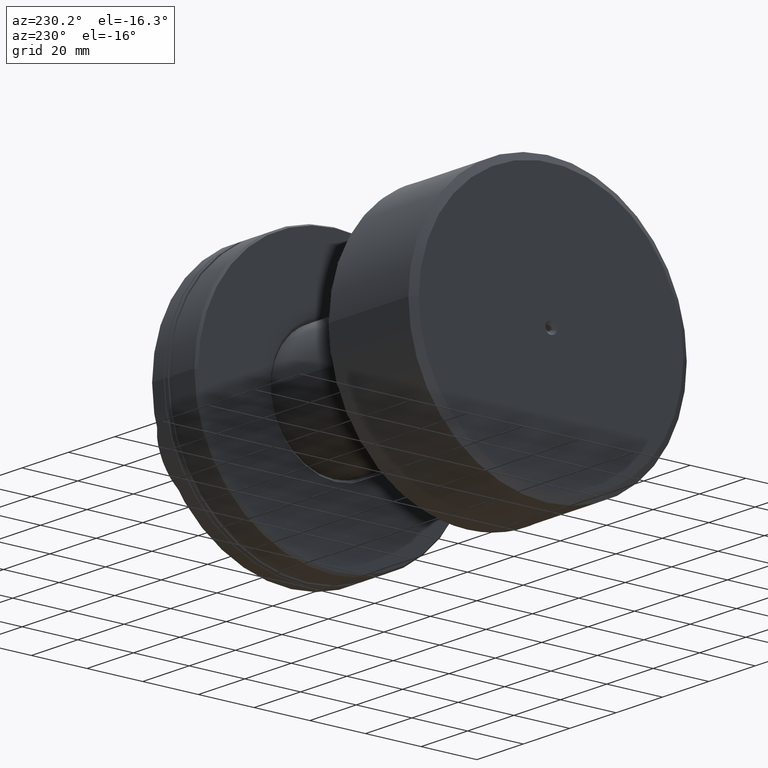
[diagram: clean part render]
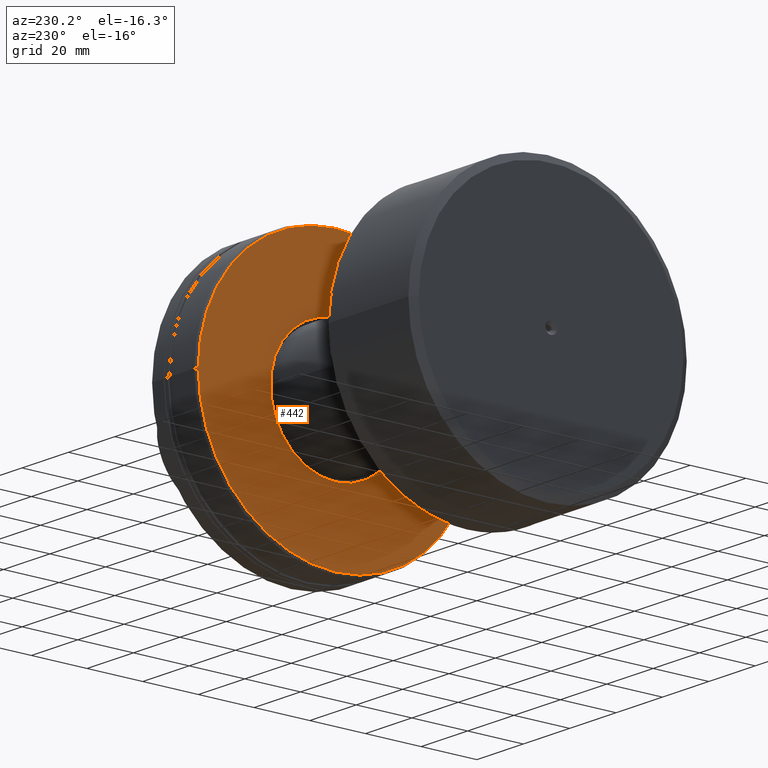
[diagram: same view with one face highlighted and labeled with its STEP entity id]
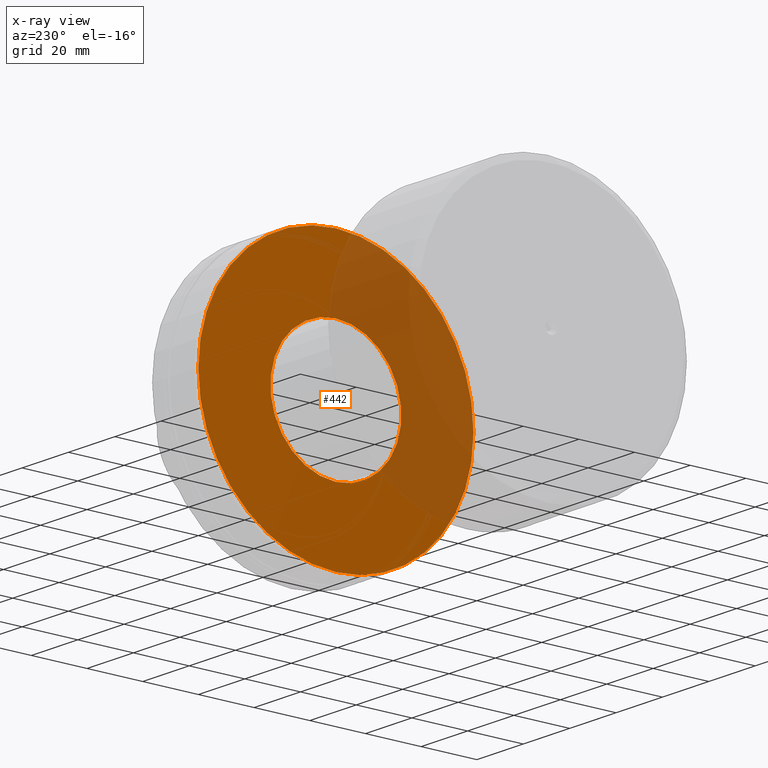
[diagram: x-ray of the same camera — body ghosted, the highlighted face saturated]
A machine part, auxiliary view. The second image highlights one B-rep face of the part: STEP entity #442.
The next image is the same camera in x-ray: the body ghosted, the highlighted face saturated — about 36% of this face is hidden behind the body in this view.
In plain terms, the highlighted planar face has unit normal (1, 0, 0).
Its self-contained STEP definition (entity closure, byte-faithful):
#8 = ORIENTED_EDGE ( 'NONE', *, *, #863, .T. ) ;
#37 = CARTESIAN_POINT ( 'NONE',  ( -45.20000000000000284, -3.708233295962651802E-15, 0.000000000000000000 ) ) ;
#48 = DIRECTION ( 'NONE',  ( -2.485414848852932351E-16, 1.000000000000000000, 0.000000000000000000 ) ) ;
#204 = AXIS2_PLACEMENT_3D ( 'NONE', #37, #1056, #2172 ) ;
#237 = AXIS2_PLACEMENT_3D ( 'NONE', #1225, #2266, #1385 ) ;
#353 = CIRCLE ( 'NONE', #204, 49.42264973081048396 ) ;
#412 = FACE_BOUND ( 'NONE', #2037, .T. ) ;
#442 = ADVANCED_FACE ( 'NONE', ( #412, #1298 ), #1481, .F. ) ;
#456 = DIRECTION ( 'NONE',  ( -2.952720810173285168E-16, 1.000000000000000000, 0.000000000000000000 ) ) ;
#586 = DIRECTION ( 'NONE',  ( 1.000000000000000000, 2.485414848852932351E-16, -0.000000000000000000 ) ) ;
#592 = CARTESIAN_POINT ( 'NONE',  ( -45.19999999999998863, -49.42264973081049106, 6.087881487779275655E-15 ) ) ;
#675 = DIRECTION ( 'NONE',  ( -2.952720810173285168E-16, 1.000000000000000000, 0.000000000000000000 ) ) ;
#735 = VERTEX_POINT ( 'NONE', #2068 ) ;
#748 = EDGE_CURVE ( 'NONE', #1252, #1758, #1354, .T. ) ;
#797 = AXIS2_PLACEMENT_3D ( 'NONE', #1324, #586, #48 ) ;
#854 = DIRECTION ( 'NONE',  ( 1.000000000000000000, 2.485414848852932351E-16, -0.000000000000000000 ) ) ;
#863 = EDGE_CURVE ( 'NONE', #735, #1149, #1803, .T. ) ;
#885 = CARTESIAN_POINT ( 'NONE',  ( -45.20000000000000284, 0.000000000000000000, 0.000000000000000000 ) ) ;
#985 = ORIENTED_EDGE ( 'NONE', *, *, #748, .F. ) ;
#1056 = DIRECTION ( 'NONE',  ( 1.000000000000000000, 2.485414848852932351E-16, -0.000000000000000000 ) ) ;
#1149 = VERTEX_POINT ( 'NONE', #1270 ) ;
#1225 = CARTESIAN_POINT ( 'NONE',  ( -45.20000000000000284, -3.708233295962651802E-15, 0.000000000000000000 ) ) ;
#1228 = CARTESIAN_POINT ( 'NONE',  ( -45.20000000000000284, 0.000000000000000000, 0.000000000000000000 ) ) ;
#1241 = EDGE_CURVE ( 'NONE', #1758, #1252, #353, .T. ) ;
#1252 = VERTEX_POINT ( 'NONE', #592 ) ;
#1270 = CARTESIAN_POINT ( 'NONE',  ( -45.20000000000000284, 2.877919977996283081E-15, -23.50000000000002132 ) ) ;
#1298 = FACE_OUTER_BOUND ( 'NONE', #1912, .T. ) ;
#1324 = CARTESIAN_POINT ( 'NONE',  ( -45.20000000000000284, -3.708233295962652591E-15, 0.000000000000000000 ) ) ;
#1354 = CIRCLE ( 'NONE', #237, 49.42264973081048396 ) ;
#1385 = DIRECTION ( 'NONE',  ( -2.807981337180902194E-16, 1.000000000000000000, 0.000000000000000000 ) ) ;
#1427 = ORIENTED_EDGE ( 'NONE', *, *, #1241, .F. ) ;
#1481 = PLANE ( 'NONE',  #797 ) ;
#1501 = EDGE_CURVE ( 'NONE', #1149, #735, #2190, .T. ) ;
#1701 = CARTESIAN_POINT ( 'NONE',  ( -45.20000000000001705, 49.42264973081047685, 0.000000000000000000 ) ) ;
#1740 = AXIS2_PLACEMENT_3D ( 'NONE', #1228, #2061, #456 ) ;
#1758 = VERTEX_POINT ( 'NONE', #1701 ) ;
#1803 = CIRCLE ( 'NONE', #2145, 23.50000000000002842 ) ;
#1912 = EDGE_LOOP ( 'NONE', ( #1427, #985 ) ) ;
#2037 = EDGE_LOOP ( 'NONE', ( #8, #2243 ) ) ;
#2061 = DIRECTION ( 'NONE',  ( 1.000000000000000000, 2.485414848852932351E-16, -0.000000000000000000 ) ) ;
#2068 = CARTESIAN_POINT ( 'NONE',  ( -45.20000000000000284, 0.000000000000000000, 23.50000000000002132 ) ) ;
#2145 = AXIS2_PLACEMENT_3D ( 'NONE', #885, #854, #675 ) ;
#2172 = DIRECTION ( 'NONE',  ( -2.807981337180902194E-16, 1.000000000000000000, 0.000000000000000000 ) ) ;
#2190 = CIRCLE ( 'NONE', #1740, 23.50000000000002842 ) ;
#2243 = ORIENTED_EDGE ( 'NONE', *, *, #1501, .T. ) ;
#2266 = DIRECTION ( 'NONE',  ( 1.000000000000000000, 2.485414848852932351E-16, -0.000000000000000000 ) ) ;